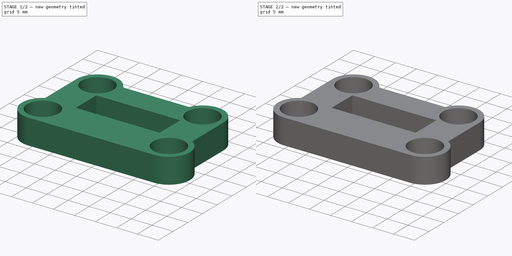
[diagram: build sequence overview — one tinted view per stage of 2, left to right]
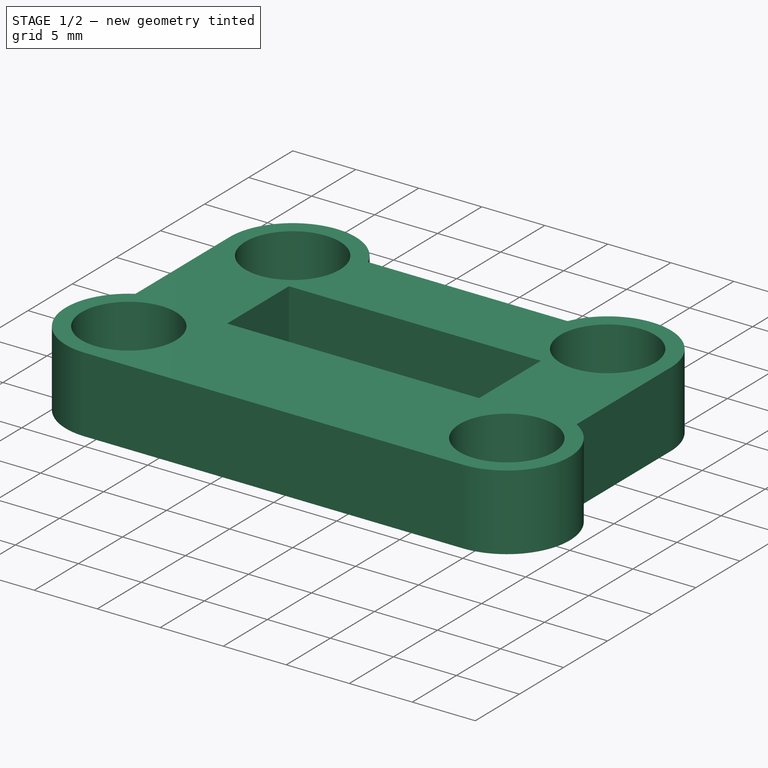
[diagram: stage 1 of 2 — iso view after this stage's code; geometry added in this stage tinted green]
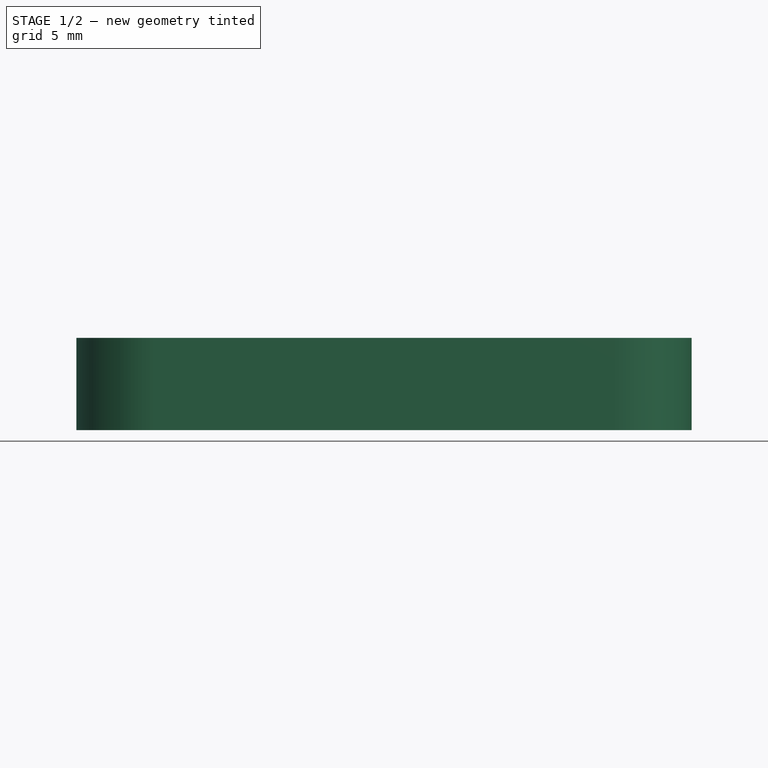
[diagram: stage 1 of 2 — front view after this stage's code; geometry added in this stage tinted green]
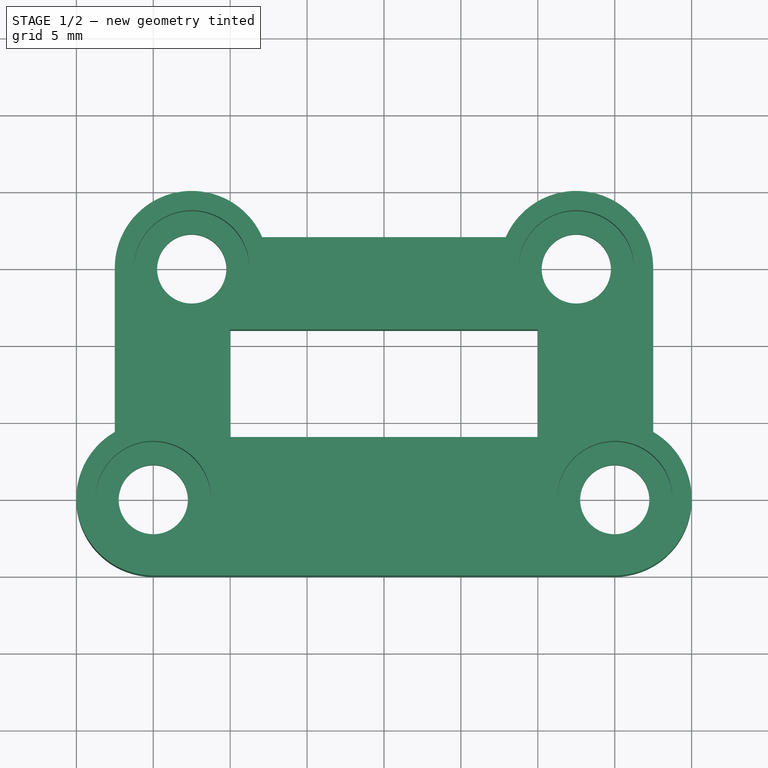
[diagram: stage 1 of 2 — top view after this stage's code; geometry added in this stage tinted green]
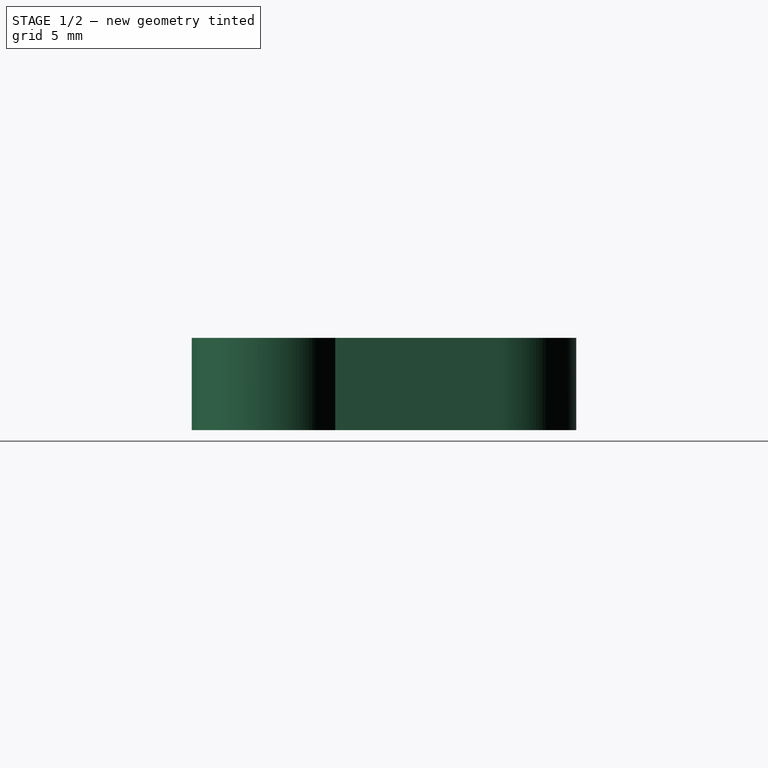
[diagram: stage 1 of 2 — right view after this stage's code; geometry added in this stage tinted green]
FCSTD DOCUMENT  (FreeCAD 1.0R38641 +678 (Git))
Label: bracket
License: All rights reserved
LicenseURL: https://en.wikipedia.org/wiki/All_rights_reserved
objects: Sketcher::SketchObject×3, PartDesign::Pad×1, PartDesign::Hole×1, PartDesign::Pocket×1, PartDesign::Body×1
note: 16 computed .brp shape members not serialized (recipe doc carries the construction recipe); baked Part::Feature solids carry a one-line shape summary decoded from their .brp

FEATURE [Sketcher::SketchObject] Sketch155
  ArcFitTolerance = 0
  AttachmentSupport = -> [XY_Plane019]
  FullyConstrained = true
  MakeInternals = false
  MapMode = 5
  sketch-geometry (12):
    g0: LineSegment StartX=-10 StartY=-4 StartZ=0 EndX=10 EndY=-4 EndZ=0
    g1: LineSegment StartX=-7.91742 StartY=2 StartZ=0 EndX=7.91742 EndY=2 EndZ=0
    g2: ArcOfCircle CenterX=-15 CenterY=-15 CenterZ=0 NormalX=0 NormalY=0 NormalZ=1 AngleXU=0 Radius=5 StartAngle=2.0944 EndAngle=4.71239
    g3: ArcOfCircle CenterX=15 CenterY=-15 CenterZ=0 NormalX=0 NormalY=0 NormalZ=1 AngleXU=0 Radius=5 StartAngle=4.71239 EndAngle=7.33038
    g4: LineSegment StartX=-10 StartY=-4 StartZ=0 EndX=-10 EndY=-11 EndZ=0
    g5: LineSegment StartX=10 StartY=-11 StartZ=0 EndX=10 EndY=-4 EndZ=0
    g6: ArcOfCircle CenterX=-12.5 CenterY=0 CenterZ=0 NormalX=0 NormalY=0 NormalZ=1 AngleXU=0 Radius=5 StartAngle=0.411517 EndAngle=3.14159
    g7: ArcOfCircle CenterX=12.5 CenterY=0 CenterZ=0 NormalX=0 NormalY=0 NormalZ=1 AngleXU=0 Radius=5 StartAngle=0 EndAngle=2.73008
    g8: LineSegment StartX=17.5 StartY=-10.6699 StartZ=0 EndX=17.5 EndY=0 EndZ=0
    g9: LineSegment StartX=-17.5 StartY=-10.6699 StartZ=0 EndX=-17.5 EndY=-1.8e-15 EndZ=0
    g10: LineSegment StartX=-15 StartY=-20 StartZ=0 EndX=15 EndY=-20 EndZ=0
    g11: LineSegment StartX=-10 StartY=-11 StartZ=0 EndX=10 EndY=-11 EndZ=0
  constraints (37):
    c: Horizontal(g0)
    c: Horizontal(g1)
    c: DistanceX(g-2,g2) = -15
    c: DistanceX(g-2,g3) = 15
    c: DistanceY(g-1,g2) = -15
    c: DistanceY(g-1,g3) = -15
    c: Diameter(g2) = 10
    c: Equal(g2,g3)
    c: Vertical(g4)
    c: Vertical(g5)
    c: Coincident(g0,g4)
    c: Coincident(g0,g5)
    c: Diameter(g6) = 10
    c: Distance(g-1,g6) = 12.5
    c: PointOnObject(g6,g-1)
    c: Equal(g7,g6)
    c: Distance(g-1,g7) = 12.5
    c: Coincident(g8,g3)
    c: Vertical(g8)
    c: Coincident(g9,g2)
    c: Vertical(g9)
    c: Tangent(g7,g8) = -1.5708
    c: Coincident(g7,g1)
    c: Coincident(g6,g1)
    c: Tangent(g6,g9) = 1.5708
    c: PointOnObject(g7,g-1)
    c: Distance(g1,g0) = 6
    c: Distance(g-1,g0) = 4
    c: Horizontal(g10)
    c: Horizontal(g11)
    c: Distance(g10,g11) = 9
    c: Coincident(g5,g11)
    c: Tangent(g3,g10) = -1.5708
    c: Coincident(g4,g11)
    c: Coincident(g2,g10)
    c: DistanceX(g11,g11) = 20
    c: Distance(g-1,g5) = 10
FEATURE [PartDesign::Pad] Pad067
  Direction = (0,0,1)
  Length = 6
  Length2 = 10
  Profile = -> Sketch155
  ReferenceAxis = -> Sketch155 [N_Axis]
  Suppressed = false
  Type = 0
FEATURE [Sketcher::SketchObject] Sketch156
  ArcFitTolerance = 0
  AttachmentSupport = -> [Pad067]
  FullyConstrained = true
  MakeInternals = false
  MapMode = 5
  Placement = pos=(0,0,6) rot=(0,0,1;0rad)
  sketch-geometry (4):
    g0: Circle CenterX=-12.5 CenterY=0 CenterZ=0 NormalX=0 NormalY=0 NormalZ=1 AngleXU=0 Radius=2.25
    g1: Circle CenterX=12.5 CenterY=0 CenterZ=0 NormalX=0 NormalY=0 NormalZ=1 AngleXU=0 Radius=2.25
    g2: Circle CenterX=15 CenterY=-15 CenterZ=0 NormalX=0 NormalY=0 NormalZ=1 AngleXU=0 Radius=2.25
    g3: Circle CenterX=-15 CenterY=-15 CenterZ=0 NormalX=0 NormalY=0 NormalZ=1 AngleXU=0 Radius=2.25
  constraints (12):
    c: PointOnObject(g0,g-1)
    c: PointOnObject(g1,g-1)
    c: DistanceX(g-2,g0) = -12.5
    c: DistanceX(g-2,g1) = 12.5
    c: Diameter(g0) = 4.5
    c: DistanceX(g-2,g3) = -15
    c: DistanceX(g-2,g2) = 15
    c: DistanceY(g-1,g3) = -15
    c: DistanceY(g-1,g2) = -15
    c: Equal(g0,g3)
    c: Equal(g0,g1)
    c: Equal(g0,g2)
FEATURE [PartDesign::Hole] Hole009
  BaseFeature = -> Pad067
  CustomThreadClearance = 0
  Depth = 25
  DepthType = 0
  Diameter = 4.5
  DrillForDepth = false
  DrillPoint = 1
  DrillPointAngle = 118
  HoleCutCountersinkAngle = 90
  HoleCutCustomValues = false
  HoleCutDepth = 4
  HoleCutDiameter = 7.5
  HoleCutType = 1
  ModelThread = false
  Profile = -> Sketch156
  Suppressed = false
  Tapered = false
  TaperedAngle = 90
  ThreadClass = 0
  ThreadDepth = 25
  ThreadDepthType = 0
  ThreadDirection = 0
  ThreadFit = 0
  ThreadSize = 0
  ThreadType = 0
  Threaded = false
  UseCustomThreadClearance = false
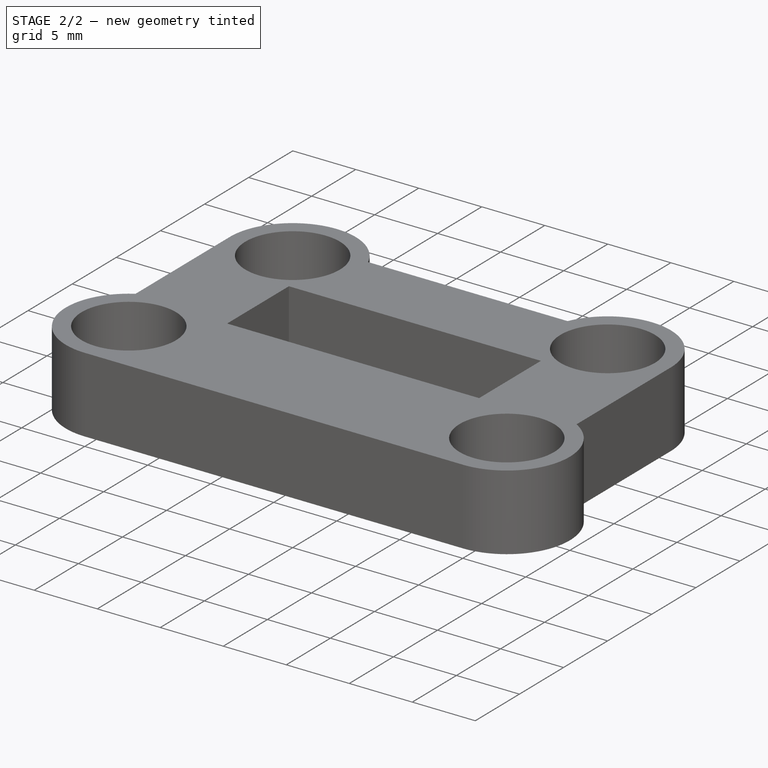
[diagram: stage 2 of 2 — iso view after this stage's code; geometry added in this stage tinted green]
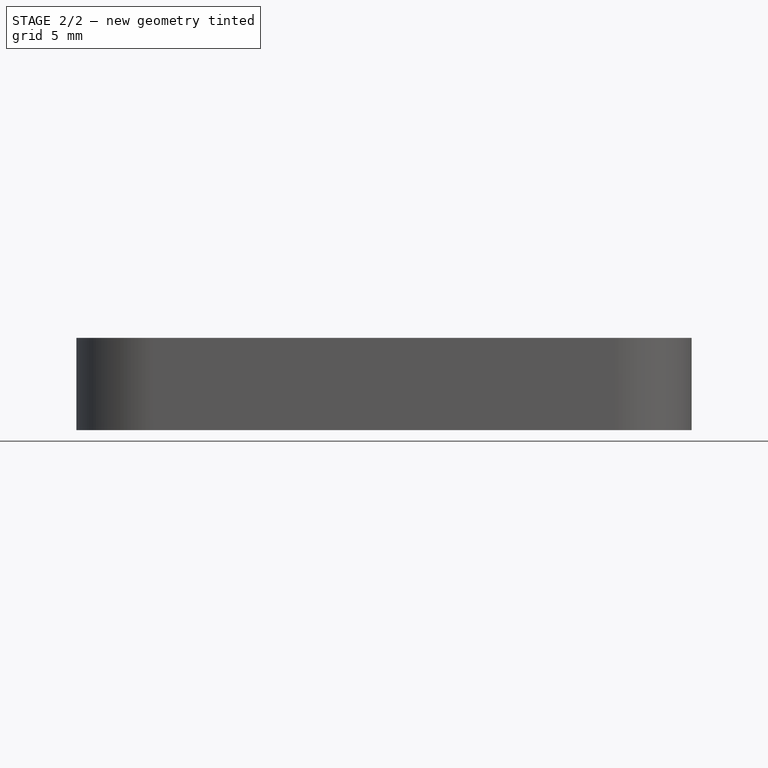
[diagram: stage 2 of 2 — front view after this stage's code; geometry added in this stage tinted green]
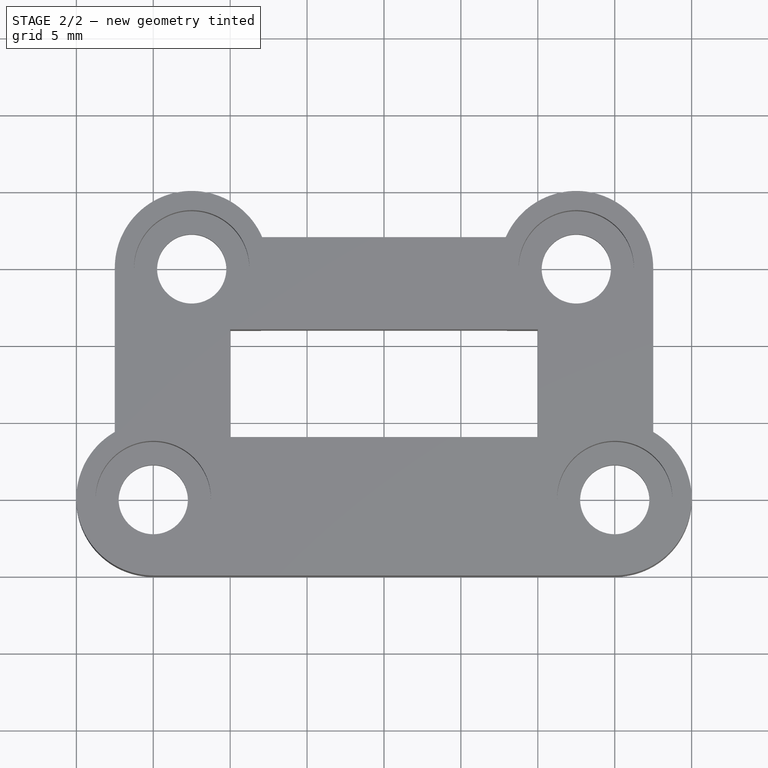
[diagram: stage 2 of 2 — top view after this stage's code; geometry added in this stage tinted green]
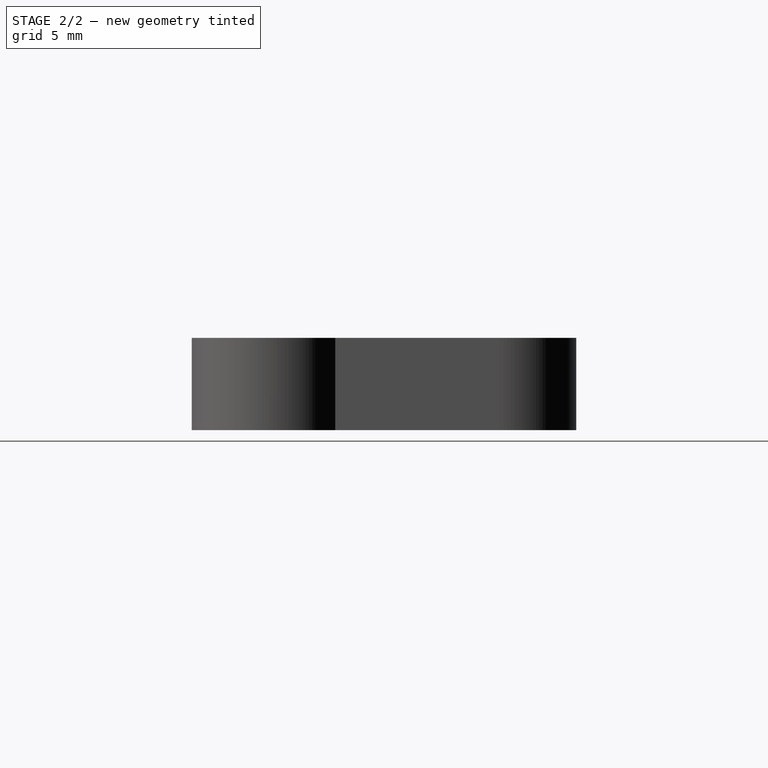
[diagram: stage 2 of 2 — right view after this stage's code; geometry added in this stage tinted green]
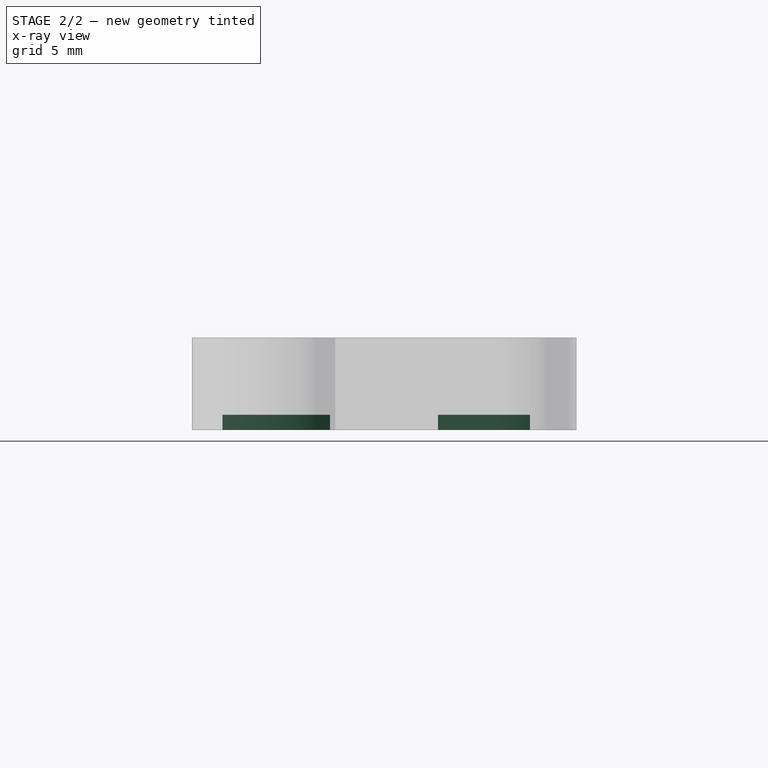
[diagram: stage 2 of 2 — x-ray composite at the right view; earlier geometry ghosted, this stage's added geometry solid]
FEATURE [Sketcher::SketchObject] Sketch275
  ArcFitTolerance = 0
  AttachmentSupport = -> [Hole009]
  FullyConstrained = true
  MakeInternals = false
  MapMode = 5
  Placement = pos=(0,0,0) rot=(1,0,0;3.14159rad)
  sketch-geometry (4):
    g0: LineSegment StartX=-8 StartY=18 StartZ=0 EndX=8 EndY=18 EndZ=0
    g1: LineSegment StartX=8 StartY=18 StartZ=0 EndX=8 EndY=-2 EndZ=0
    g2: LineSegment StartX=8 StartY=-2 StartZ=0 EndX=-8 EndY=-2 EndZ=0
    g3: LineSegment StartX=-8 StartY=-2 StartZ=0 EndX=-8 EndY=18 EndZ=0
  constraints (12):
    c: Coincident(g0,g1)
    c: Coincident(g1,g2)
    c: Coincident(g2,g3)
    c: Coincident(g3,g0)
    c: Horizontal(g0)
    c: Horizontal(g2)
    c: Vertical(g1)
    c: Vertical(g3)
    c: Distance(g-1,g1) = 8
    c: DistanceY(g1,g1) = 20
    c: DistanceX(g0,g0) = 16
    c: Distance(g-1,g2) = 2
FEATURE [PartDesign::Pocket] Pocket114
  BaseFeature = -> Hole009
  Direction = (0,0,1)
  Length = 1
  Length2 = 5
  Profile = -> Sketch275
  ReferenceAxis = -> Sketch275 [N_Axis]
  Suppressed = false
  Type = 0
FEATURE [PartDesign::Body] Body019  label="hc-sr04-bracket"
  AllowCompound = false
  Group = -> [Sketch155,Pad067,Sketch156,Hole009,Sketch275,Pocket114]
  Origin = -> Origin019
  Placement = pos=(102,0,0) rot=(0,0,1;0rad)
  Tip = -> Pocket114
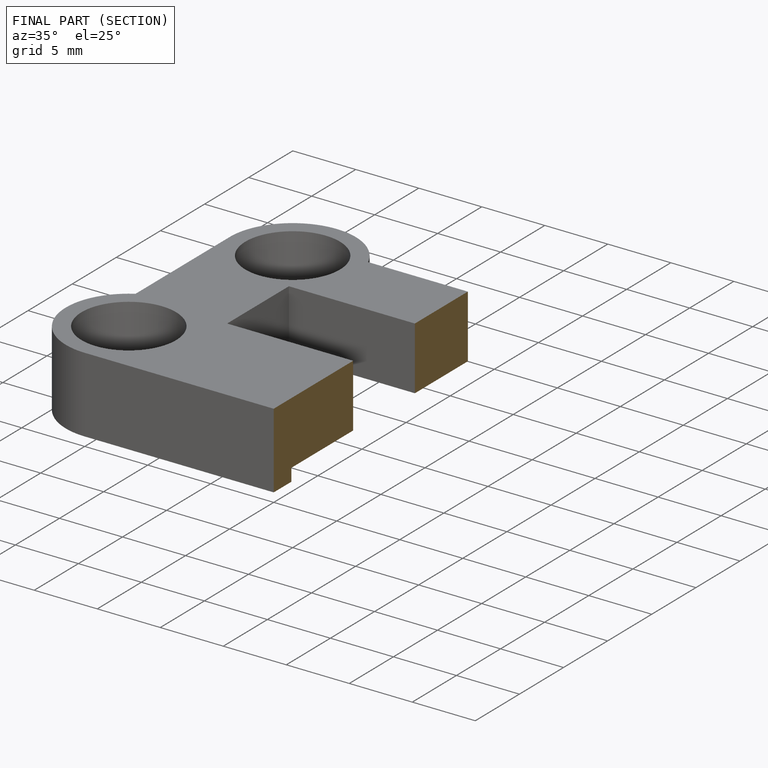
[diagram: finished part — half-section view (interior)]
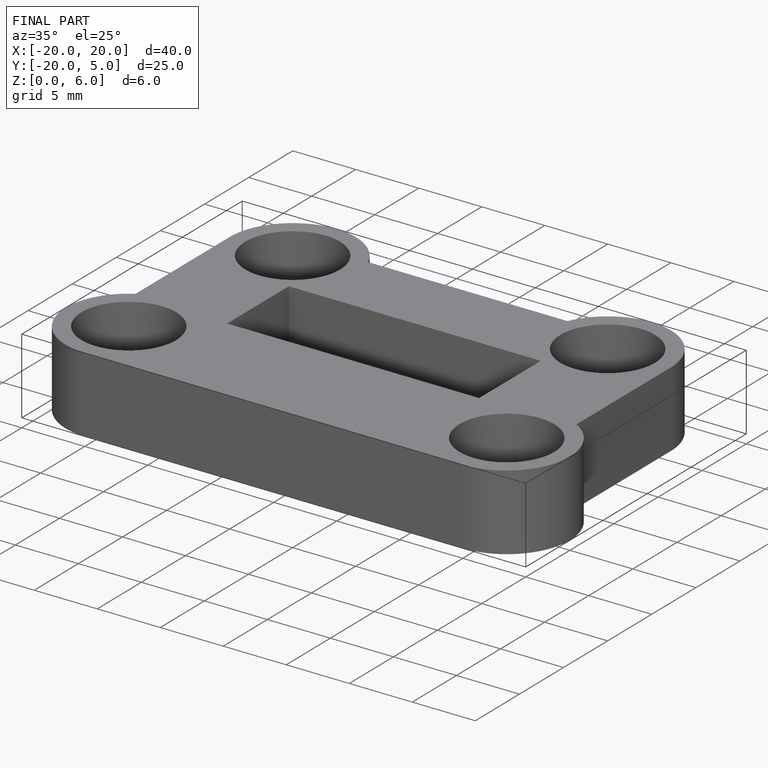
[diagram: finished part — iso view with bounding-box wireframe]
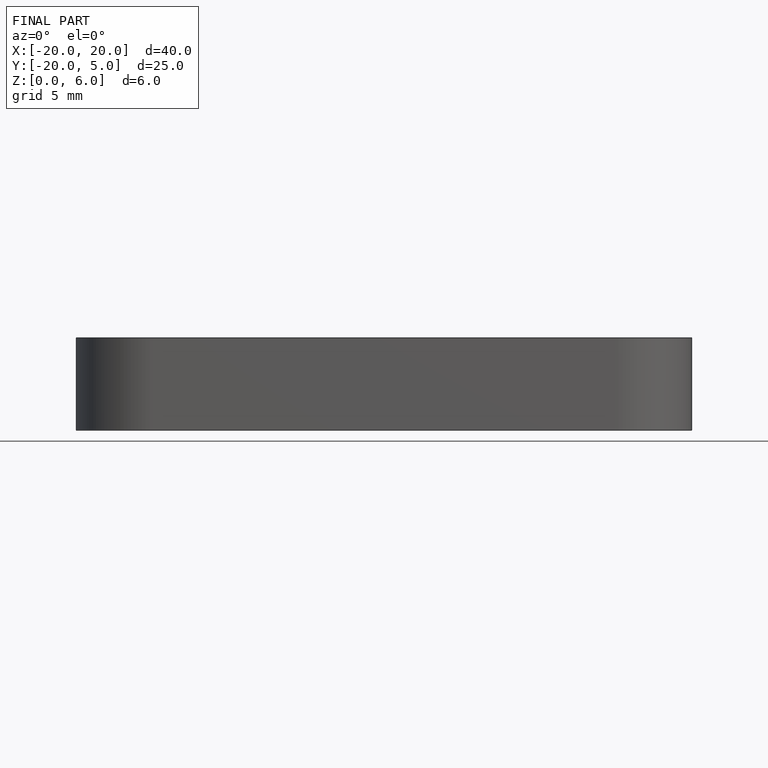
[diagram: finished part — front view with bounding-box wireframe]
